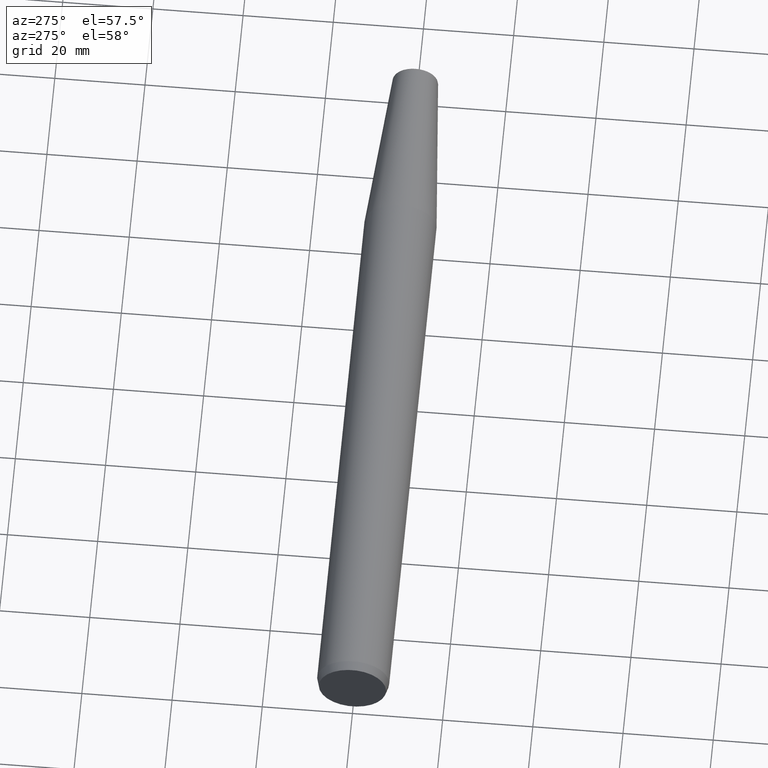
[diagram: clean part render]
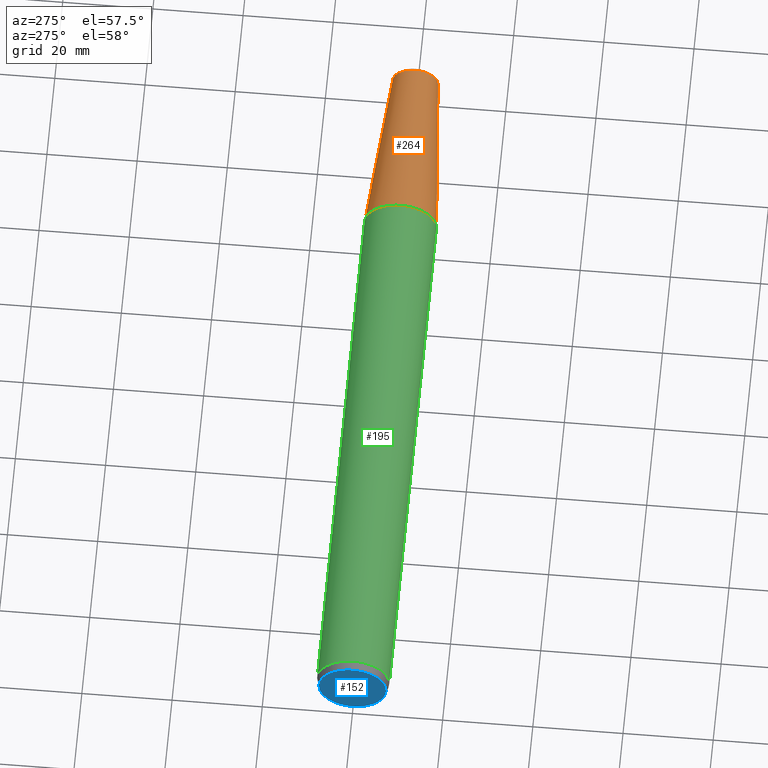
[diagram: same view with three faces highlighted in distinct colors, each labeled with its STEP entity id]
A machine part, auxiliary view with three faces highlighted in distinct colors.
Their STEP definitions:

[orange] entity #264 — the highlighted conical surface has half-angle 4.5 deg.
#24=CARTESIAN_POINT('',(1.218813857915E2,0.E0,0.E0));
#25=DIRECTION('',(1.E0,0.E0,0.E0));
#26=DIRECTION('',(0.E0,1.E0,0.E0));
#27=AXIS2_PLACEMENT_3D('',#24,#25,#26);
#52=DIRECTION('',(-9.969173337331E-1,7.845909572784E-2,7.746510072684E-13));
#53=VECTOR('',#52,3.749697213622E1);
#54=CARTESIAN_POINT('',(1.592627672766E2,5.058021473660E0,-2.904608751740E-11));
#55=LINE('',#54,#53);
#56=DIRECTION('',(-9.969173337331E-1,-7.845909572784E-2,-7.745870130500E-13));
#57=VECTOR('',#56,3.749697213622E1);
#58=CARTESIAN_POINT('',(1.592627672766E2,-5.058021473660E0,2.904368792798E-11));
#59=LINE('',#58,#57);
#70=CARTESIAN_POINT('',(1.592627672766E2,0.E0,0.E0));
#71=DIRECTION('',(-1.E0,0.E0,0.E0));
#72=DIRECTION('',(0.E0,-1.E0,0.E0));
#73=AXIS2_PLACEMENT_3D('',#70,#71,#72);
#113=CARTESIAN_POINT('',(1.218813857915E2,8.E0,0.E0));
#114=CARTESIAN_POINT('',(1.218813857915E2,-8.E0,0.E0));
#115=VERTEX_POINT('',#113);
#116=VERTEX_POINT('',#114);
#133=CARTESIAN_POINT('',(1.592627672766E2,5.058021473660E0,0.E0));
#134=CARTESIAN_POINT('',(1.592627672766E2,-5.058021473660E0,0.E0));
#135=VERTEX_POINT('',#133);
#136=VERTEX_POINT('',#134);
#253=CARTESIAN_POINT('',(1.405720765340E2,0.E0,0.E0));
#254=DIRECTION('',(-1.E0,0.E0,0.E0));
#255=DIRECTION('',(0.E0,1.E0,0.E0));
#256=AXIS2_PLACEMENT_3D('',#253,#254,#255);
#257=CONICAL_SURFACE('',#256,6.529010736830E0,4.5E0);
#258=ORIENTED_EDGE('',*,*,#244,.F.);
#259=ORIENTED_EDGE('',*,*,#219,.T.);
#260=ORIENTED_EDGE('',*,*,#189,.F.);
#261=ORIENTED_EDGE('',*,*,#216,.F.);
#262=EDGE_LOOP('',(#258,#259,#260,#261));
#263=FACE_OUTER_BOUND('',#262,.F.);
#264=ADVANCED_FACE('',(#263),#257,.T.);
#28=CIRCLE('',#27,8.E0);
#74=CIRCLE('',#73,5.058021473660E0);
#189=EDGE_CURVE('',#115,#116,#28,.T.);
#216=EDGE_CURVE('',#135,#115,#55,.T.);
#219=EDGE_CURVE('',#136,#116,#59,.T.);
#244=EDGE_CURVE('',#136,#135,#74,.T.);

[blue] entity #152 — the highlighted planar face has unit normal (1, 0, 0).
#1=CARTESIAN_POINT('',(0.E0,0.E0,0.E0));
#2=DIRECTION('',(-1.E0,0.E0,0.E0));
#3=DIRECTION('',(0.E0,1.E0,0.E0));
#4=AXIS2_PLACEMENT_3D('',#1,#2,#3);
#6=CARTESIAN_POINT('',(0.E0,0.E0,0.E0));
#7=DIRECTION('',(-1.E0,0.E0,0.E0));
#8=DIRECTION('',(0.E0,-1.E0,0.E0));
#9=AXIS2_PLACEMENT_3D('',#6,#7,#8);
#125=CARTESIAN_POINT('',(0.E0,7.464101615138E0,0.E0));
#126=CARTESIAN_POINT('',(0.E0,-7.464101615138E0,0.E0));
#127=VERTEX_POINT('',#125);
#128=VERTEX_POINT('',#126);
#141=CARTESIAN_POINT('',(0.E0,0.E0,0.E0));
#142=DIRECTION('',(1.E0,0.E0,0.E0));
#143=DIRECTION('',(0.E0,-1.E0,0.E0));
#144=AXIS2_PLACEMENT_3D('',#141,#142,#143);
#145=PLANE('',#144);
#147=ORIENTED_EDGE('',*,*,#146,.F.);
#149=ORIENTED_EDGE('',*,*,#148,.F.);
#150=EDGE_LOOP('',(#147,#149));
#151=FACE_OUTER_BOUND('',#150,.F.);
#152=ADVANCED_FACE('',(#151),#145,.F.);
#5=CIRCLE('',#4,7.464101615138E0);
#10=CIRCLE('',#9,7.464101615138E0);
#146=EDGE_CURVE('',#127,#128,#5,.T.);
#148=EDGE_CURVE('',#128,#127,#10,.T.);

[green] entity #195 — the highlighted cylindrical surface (edge-blend (fillet) strip) has radius 8 mm, axis along (1, 0, 0).
#19=CARTESIAN_POINT('',(2.E0,0.E0,0.E0));
#20=DIRECTION('',(-1.E0,0.E0,0.E0));
#21=DIRECTION('',(0.E0,-1.E0,0.E0));
#22=AXIS2_PLACEMENT_3D('',#19,#20,#21);
#24=CARTESIAN_POINT('',(1.218813857915E2,0.E0,0.E0));
#25=DIRECTION('',(1.E0,0.E0,0.E0));
#26=DIRECTION('',(0.E0,1.E0,0.E0));
#27=AXIS2_PLACEMENT_3D('',#24,#25,#26);
#34=DIRECTION('',(-1.E0,1.276256442345E-12,1.520143025202E-11));
#35=VECTOR('',#34,1.198813857920E2);
#36=CARTESIAN_POINT('',(1.218813857915E2,-8.E0,0.E0));
#37=LINE('',#36,#35);
#43=DIRECTION('',(-1.E0,-1.276256442345E-12,-1.520143599952E-11));
#44=VECTOR('',#43,1.198813857920E2);
#45=CARTESIAN_POINT('',(1.218813857915E2,8.E0,0.E0));
#46=LINE('',#45,#44);
#113=CARTESIAN_POINT('',(1.218813857915E2,8.E0,0.E0));
#114=CARTESIAN_POINT('',(1.218813857915E2,-8.E0,0.E0));
#115=VERTEX_POINT('',#113);
#116=VERTEX_POINT('',#114);
#129=CARTESIAN_POINT('',(2.E0,8.E0,0.E0));
#130=CARTESIAN_POINT('',(2.E0,-8.E0,0.E0));
#131=VERTEX_POINT('',#129);
#132=VERTEX_POINT('',#130);
#181=CARTESIAN_POINT('',(-8.E0,0.E0,0.E0));
#182=DIRECTION('',(1.E0,0.E0,0.E0));
#183=DIRECTION('',(0.E0,-1.E0,0.E0));
#184=AXIS2_PLACEMENT_3D('',#181,#182,#183);
#185=CYLINDRICAL_SURFACE('',#184,8.E0);
#186=ORIENTED_EDGE('',*,*,#175,.T.);
#188=ORIENTED_EDGE('',*,*,#187,.F.);
#190=ORIENTED_EDGE('',*,*,#189,.T.);
#192=ORIENTED_EDGE('',*,*,#191,.T.);
#193=EDGE_LOOP('',(#186,#188,#190,#192));
#194=FACE_OUTER_BOUND('',#193,.F.);
#195=ADVANCED_FACE('',(#194),#185,.T.);
#23=CIRCLE('',#22,8.E0);
#28=CIRCLE('',#27,8.E0);
#175=EDGE_CURVE('',#132,#131,#23,.T.);
#187=EDGE_CURVE('',#115,#131,#46,.T.);
#189=EDGE_CURVE('',#115,#116,#28,.T.);
#191=EDGE_CURVE('',#116,#132,#37,.T.);